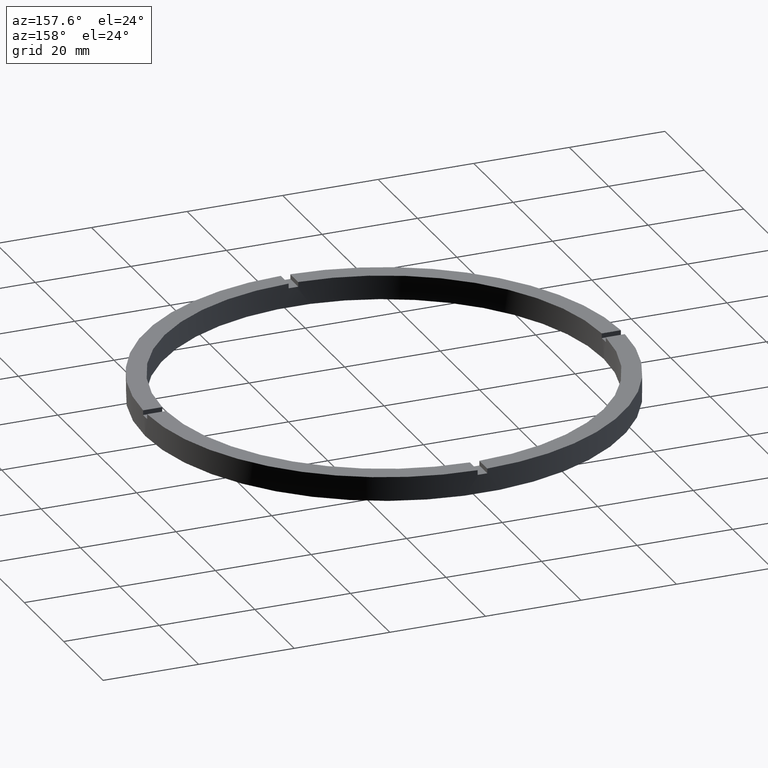
[diagram: clean part render]
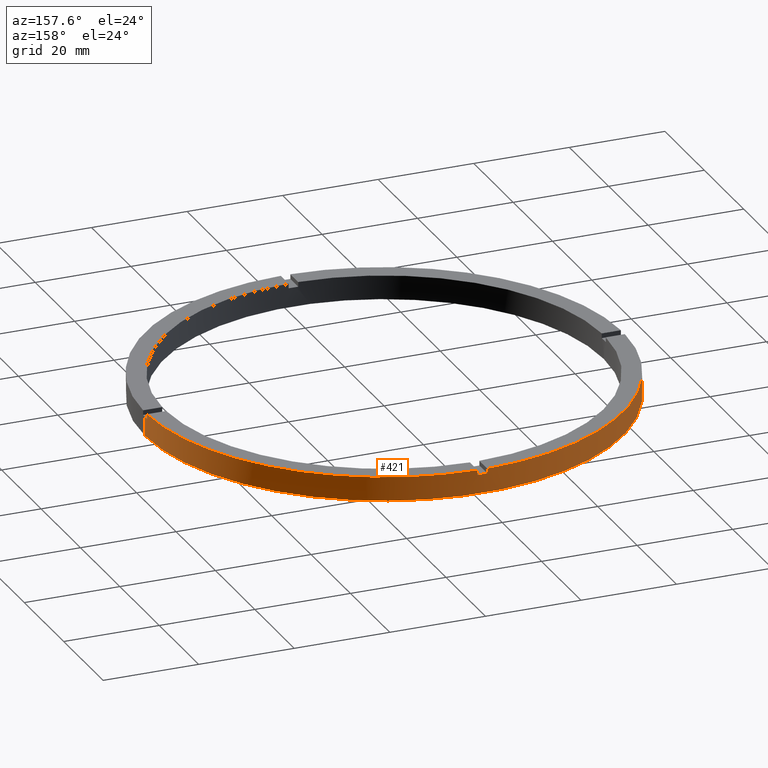
[diagram: same view with one face highlighted and labeled with its STEP entity id]
A machine part, auxiliary view. The second image highlights one B-rep face of the part: STEP entity #421.
In plain terms, the highlighted cylindrical surface (partial cylindrical patch) has radius 50 mm, axis along (-0, -0, -1).
Its self-contained STEP definition (entity closure, byte-faithful):
#1 = VECTOR ( 'NONE', #499, 1000.000000000000000 ) ;
#12 = DIRECTION ( 'NONE',  ( -0.000000000000000000, -0.000000000000000000, -1.000000000000000000 ) ) ;
#19 = CARTESIAN_POINT ( 'NONE',  ( 49.98999899979995831, 0.9999999999998447908, 5.000000000000000000 ) ) ;
#20 = CARTESIAN_POINT ( 'NONE',  ( 0.000000000000000000, 0.000000000000000000, 5.000000000000000000 ) ) ;
#23 = EDGE_LOOP ( 'NONE', ( #442, #559, #385, #53, #469, #315, #26, #729, #207, #112, #552, #660 ) ) ;
#24 = DIRECTION ( 'NONE',  ( -0.000000000000000000, -0.000000000000000000, -1.000000000000000000 ) ) ;
#26 = ORIENTED_EDGE ( 'NONE', *, *, #639, .F. ) ;
#28 = CARTESIAN_POINT ( 'NONE',  ( -50.00000000000000000, 0.000000000000000000, 0.000000000000000000 ) ) ;
#53 = ORIENTED_EDGE ( 'NONE', *, *, #225, .F. ) ;
#60 = CIRCLE ( 'NONE', #654, 50.00000000000000000 ) ;
#65 = DIRECTION ( 'NONE',  ( -0.000000000000000000, -0.000000000000000000, -1.000000000000000000 ) ) ;
#66 = CARTESIAN_POINT ( 'NONE',  ( 50.00000000000000000, 6.123233995736766085E-15, 5.000000000000000000 ) ) ;
#84 = CARTESIAN_POINT ( 'NONE',  ( 0.9999999999999731326, 49.98999899979995121, 4.000000000000000000 ) ) ;
#85 = CARTESIAN_POINT ( 'NONE',  ( 50.00000000000000000, 6.123233995736766085E-15, 0.000000000000000000 ) ) ;
#89 = CARTESIAN_POINT ( 'NONE',  ( 0.9999999999999731326, 49.98999899979995121, 5.000000000000000000 ) ) ;
#103 = DIRECTION ( 'NONE',  ( 1.000000000000000000, 0.000000000000000000, 0.000000000000000000 ) ) ;
#111 = CARTESIAN_POINT ( 'NONE',  ( 0.000000000000000000, 0.000000000000000000, 0.000000000000000000 ) ) ;
#112 = ORIENTED_EDGE ( 'NONE', *, *, #762, .T. ) ;
#126 = VERTEX_POINT ( 'NONE', #84 ) ;
#140 = VERTEX_POINT ( 'NONE', #275 ) ;
#151 = VERTEX_POINT ( 'NONE', #28 ) ;
#175 = CARTESIAN_POINT ( 'NONE',  ( 0.000000000000000000, 0.000000000000000000, 5.000000000000000000 ) ) ;
#182 = CARTESIAN_POINT ( 'NONE',  ( -50.00000000000000000, 0.000000000000000000, 4.000000000000000000 ) ) ;
#197 = VERTEX_POINT ( 'NONE', #515 ) ;
#199 = EDGE_CURVE ( 'NONE', #666, #151, #326, .T. ) ;
#203 = DIRECTION ( 'NONE',  ( 1.000000000000000000, 0.000000000000000000, 0.000000000000000000 ) ) ;
#207 = ORIENTED_EDGE ( 'NONE', *, *, #483, .F. ) ;
#208 = VECTOR ( 'NONE', #427, 1000.000000000000000 ) ;
#217 = DIRECTION ( 'NONE',  ( 1.000000000000000000, 0.000000000000000000, 0.000000000000000000 ) ) ;
#223 = EDGE_CURVE ( 'NONE', #140, #391, #60, .T. ) ;
#225 = EDGE_CURVE ( 'NONE', #391, #151, #593, .T. ) ;
#230 = VECTOR ( 'NONE', #24, 1000.000000000000000 ) ;
#243 = LINE ( 'NONE', #523, #230 ) ;
#245 = LINE ( 'NONE', #579, #776 ) ;
#249 = CIRCLE ( 'NONE', #347, 50.00000000000000000 ) ;
#256 = CIRCLE ( 'NONE', #738, 50.00000000000000000 ) ;
#261 = DIRECTION ( 'NONE',  ( 0.000000000000000000, 0.000000000000000000, 1.000000000000000000 ) ) ;
#275 = CARTESIAN_POINT ( 'NONE',  ( -49.98999899979995121, 0.9999999999999685807, 4.000000000000000000 ) ) ;
#315 = ORIENTED_EDGE ( 'NONE', *, *, #447, .T. ) ;
#326 = CIRCLE ( 'NONE', #474, 50.00000000000000000 ) ;
#330 = CARTESIAN_POINT ( 'NONE',  ( 50.00000000000000000, 6.123233995736766085E-15, 4.000000000000000000 ) ) ;
#337 = AXIS2_PLACEMENT_3D ( 'NONE', #622, #374, #217 ) ;
#347 = AXIS2_PLACEMENT_3D ( 'NONE', #542, #480, #780 ) ;
#360 = EDGE_CURVE ( 'NONE', #386, #378, #249, .T. ) ;
#361 = CARTESIAN_POINT ( 'NONE',  ( -50.00000000000000000, 0.000000000000000000, 5.000000000000000000 ) ) ;
#369 = VERTEX_POINT ( 'NONE', #715 ) ;
#372 = DIRECTION ( 'NONE',  ( 1.000000000000000000, 0.000000000000000000, 0.000000000000000000 ) ) ;
#374 = DIRECTION ( 'NONE',  ( 0.000000000000000000, -0.000000000000000000, 1.000000000000000000 ) ) ;
#378 = VERTEX_POINT ( 'NONE', #89 ) ;
#385 = ORIENTED_EDGE ( 'NONE', *, *, #199, .T. ) ;
#386 = VERTEX_POINT ( 'NONE', #545 ) ;
#391 = VERTEX_POINT ( 'NONE', #182 ) ;
#395 = VERTEX_POINT ( 'NONE', #330 ) ;
#421 = ADVANCED_FACE ( 'NONE', ( #490 ), #746, .T. ) ;
#426 = AXIS2_PLACEMENT_3D ( 'NONE', #20, #65, #633 ) ;
#427 = DIRECTION ( 'NONE',  ( 0.000000000000000000, 0.000000000000000000, 1.000000000000000000 ) ) ;
#442 = ORIENTED_EDGE ( 'NONE', *, *, #479, .F. ) ;
#447 = EDGE_CURVE ( 'NONE', #140, #686, #245, .T. ) ;
#448 = LINE ( 'NONE', #19, #472 ) ;
#469 = ORIENTED_EDGE ( 'NONE', *, *, #223, .F. ) ;
#472 = VECTOR ( 'NONE', #12, 1000.000000000000000 ) ;
#474 = AXIS2_PLACEMENT_3D ( 'NONE', #111, #501, #203 ) ;
#479 = EDGE_CURVE ( 'NONE', #395, #731, #503, .T. ) ;
#480 = DIRECTION ( 'NONE',  ( 0.000000000000000000, 0.000000000000000000, 1.000000000000000000 ) ) ;
#481 = EDGE_CURVE ( 'NONE', #197, #369, #243, .T. ) ;
#483 = EDGE_CURVE ( 'NONE', #126, #369, #518, .T. ) ;
#490 = FACE_OUTER_BOUND ( 'NONE', #23, .T. ) ;
#499 = DIRECTION ( 'NONE',  ( -0.000000000000000000, -0.000000000000000000, -1.000000000000000000 ) ) ;
#501 = DIRECTION ( 'NONE',  ( 0.000000000000000000, 0.000000000000000000, 1.000000000000000000 ) ) ;
#503 = CIRCLE ( 'NONE', #632, 50.00000000000000000 ) ;
#515 = CARTESIAN_POINT ( 'NONE',  ( -1.000000000000026867, 49.98999899979995121, 5.000000000000000000 ) ) ;
#518 = CIRCLE ( 'NONE', #337, 50.00000000000000000 ) ;
#523 = CARTESIAN_POINT ( 'NONE',  ( -1.000000000000026867, 49.98999899979995121, 5.000000000000000000 ) ) ;
#528 = LINE ( 'NONE', #66, #1 ) ;
#542 = CARTESIAN_POINT ( 'NONE',  ( 0.000000000000000000, 0.000000000000000000, 5.000000000000000000 ) ) ;
#545 = CARTESIAN_POINT ( 'NONE',  ( 49.98999899979995831, 0.9999999999998447908, 5.000000000000000000 ) ) ;
#551 = CARTESIAN_POINT ( 'NONE',  ( 0.9999999999999731326, 49.98999899979995121, 5.000000000000000000 ) ) ;
#552 = ORIENTED_EDGE ( 'NONE', *, *, #360, .F. ) ;
#553 = CARTESIAN_POINT ( 'NONE',  ( -49.98999899979995121, 0.9999999999999685807, 5.000000000000000000 ) ) ;
#558 = DIRECTION ( 'NONE',  ( -0.000000000000000000, -0.000000000000000000, -1.000000000000000000 ) ) ;
#559 = ORIENTED_EDGE ( 'NONE', *, *, #673, .T. ) ;
#573 = DIRECTION ( 'NONE',  ( 0.000000000000000000, 0.000000000000000000, 1.000000000000000000 ) ) ;
#579 = CARTESIAN_POINT ( 'NONE',  ( -49.98999899979995121, 0.9999999999999685807, 5.000000000000000000 ) ) ;
#589 = VECTOR ( 'NONE', #558, 1000.000000000000000 ) ;
#593 = LINE ( 'NONE', #361, #589 ) ;
#617 = CARTESIAN_POINT ( 'NONE',  ( 0.000000000000000000, 0.000000000000000000, 4.000000000000000000 ) ) ;
#619 = DIRECTION ( 'NONE',  ( 1.000000000000000000, 0.000000000000000000, 0.000000000000000000 ) ) ;
#622 = CARTESIAN_POINT ( 'NONE',  ( 0.000000000000000000, 0.000000000000000000, 4.000000000000000000 ) ) ;
#632 = AXIS2_PLACEMENT_3D ( 'NONE', #676, #753, #619 ) ;
#633 = DIRECTION ( 'NONE',  ( -1.000000000000000000, 0.000000000000000000, 0.000000000000000000 ) ) ;
#639 = EDGE_CURVE ( 'NONE', #197, #686, #256, .T. ) ;
#650 = DIRECTION ( 'NONE',  ( 0.000000000000000000, 0.000000000000000000, 1.000000000000000000 ) ) ;
#654 = AXIS2_PLACEMENT_3D ( 'NONE', #617, #261, #103 ) ;
#660 = ORIENTED_EDGE ( 'NONE', *, *, #767, .T. ) ;
#666 = VERTEX_POINT ( 'NONE', #85 ) ;
#673 = EDGE_CURVE ( 'NONE', #395, #666, #528, .T. ) ;
#676 = CARTESIAN_POINT ( 'NONE',  ( 0.000000000000000000, 0.000000000000000000, 4.000000000000000000 ) ) ;
#686 = VERTEX_POINT ( 'NONE', #553 ) ;
#711 = LINE ( 'NONE', #551, #208 ) ;
#715 = CARTESIAN_POINT ( 'NONE',  ( -1.000000000000026867, 49.98999899979995121, 4.000000000000000000 ) ) ;
#729 = ORIENTED_EDGE ( 'NONE', *, *, #481, .T. ) ;
#731 = VERTEX_POINT ( 'NONE', #739 ) ;
#738 = AXIS2_PLACEMENT_3D ( 'NONE', #175, #650, #372 ) ;
#739 = CARTESIAN_POINT ( 'NONE',  ( 49.98999899979995831, 0.9999999999998447908, 4.000000000000000000 ) ) ;
#746 = CYLINDRICAL_SURFACE ( 'NONE', #426, 50.00000000000000000 ) ;
#753 = DIRECTION ( 'NONE',  ( 0.000000000000000000, 0.000000000000000000, 1.000000000000000000 ) ) ;
#762 = EDGE_CURVE ( 'NONE', #126, #378, #711, .T. ) ;
#767 = EDGE_CURVE ( 'NONE', #386, #731, #448, .T. ) ;
#776 = VECTOR ( 'NONE', #573, 1000.000000000000000 ) ;
#780 = DIRECTION ( 'NONE',  ( 1.000000000000000000, 0.000000000000000000, 0.000000000000000000 ) ) ;